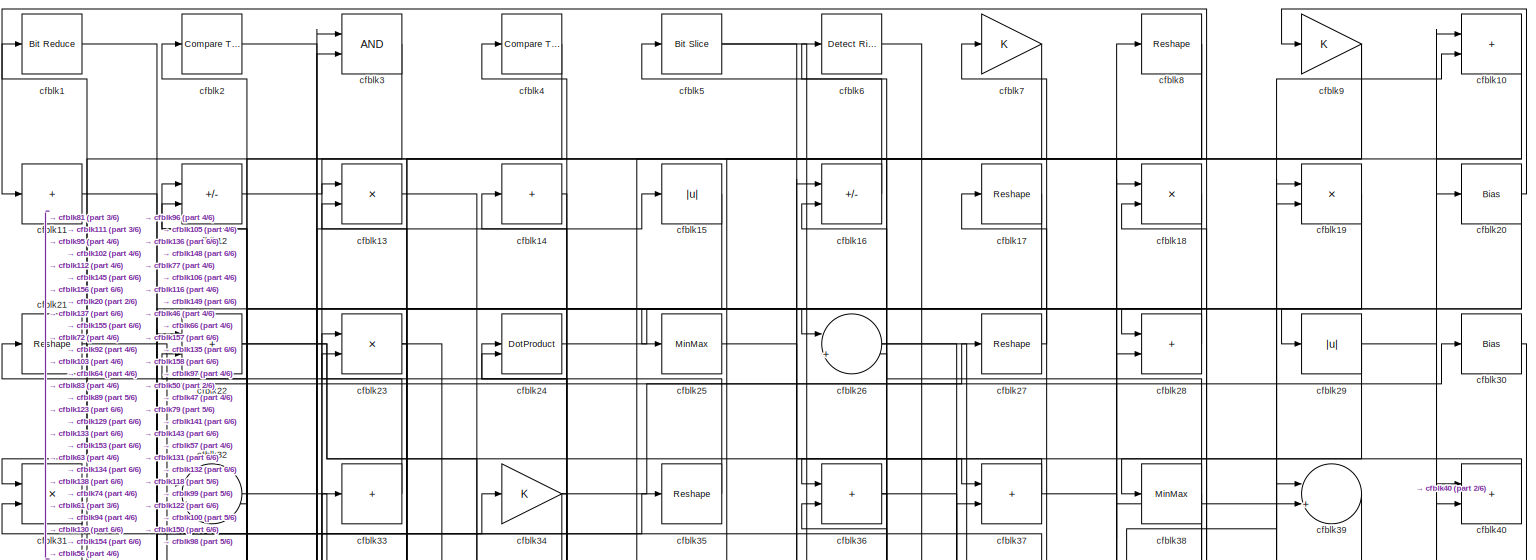
[diagram: root canvas - part 1/6, full width, top band]
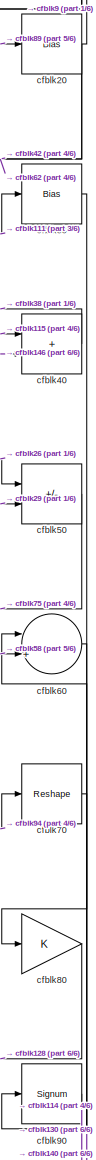
[diagram: root canvas - part 2/6, top right region]
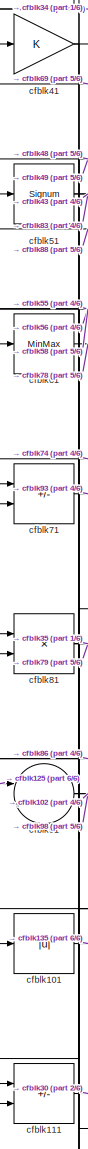
[diagram: root canvas - part 3/6, middle left region]
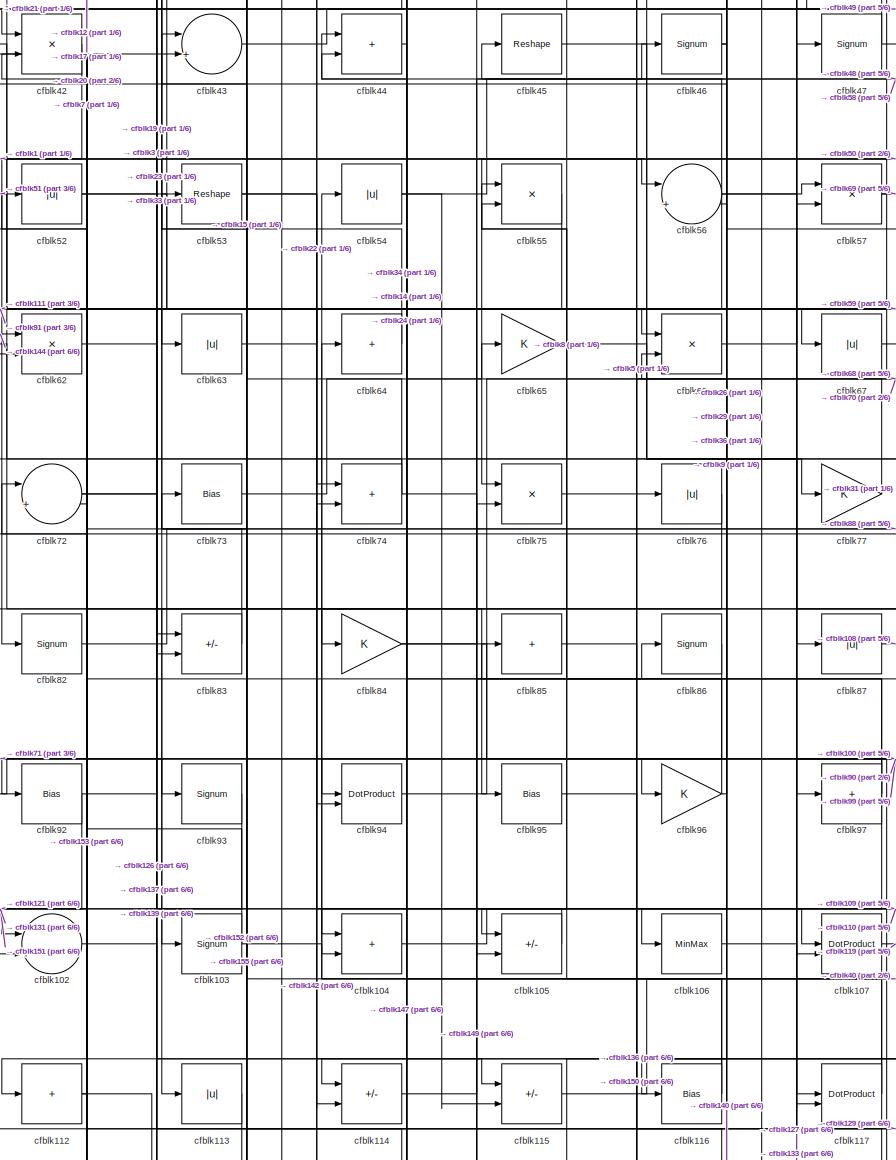
[diagram: root canvas - part 4/6, central region]
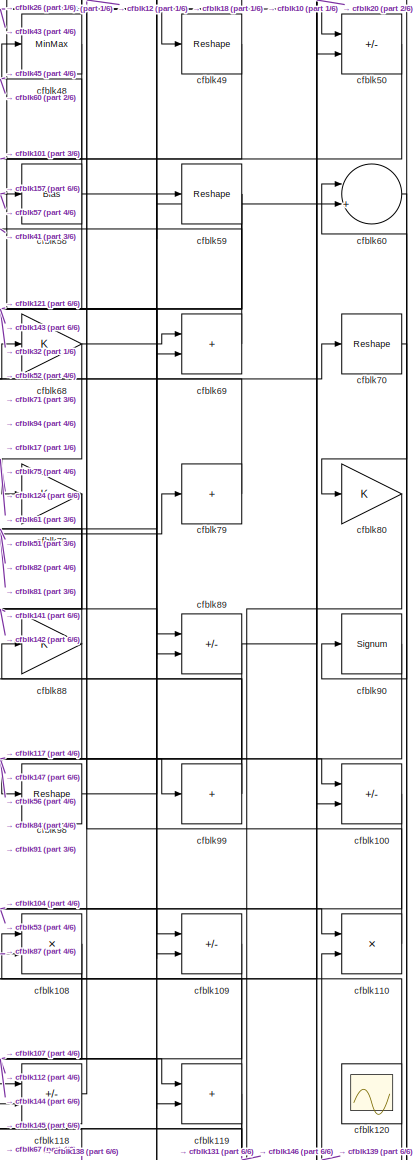
[diagram: root canvas - part 5/6, middle right region]
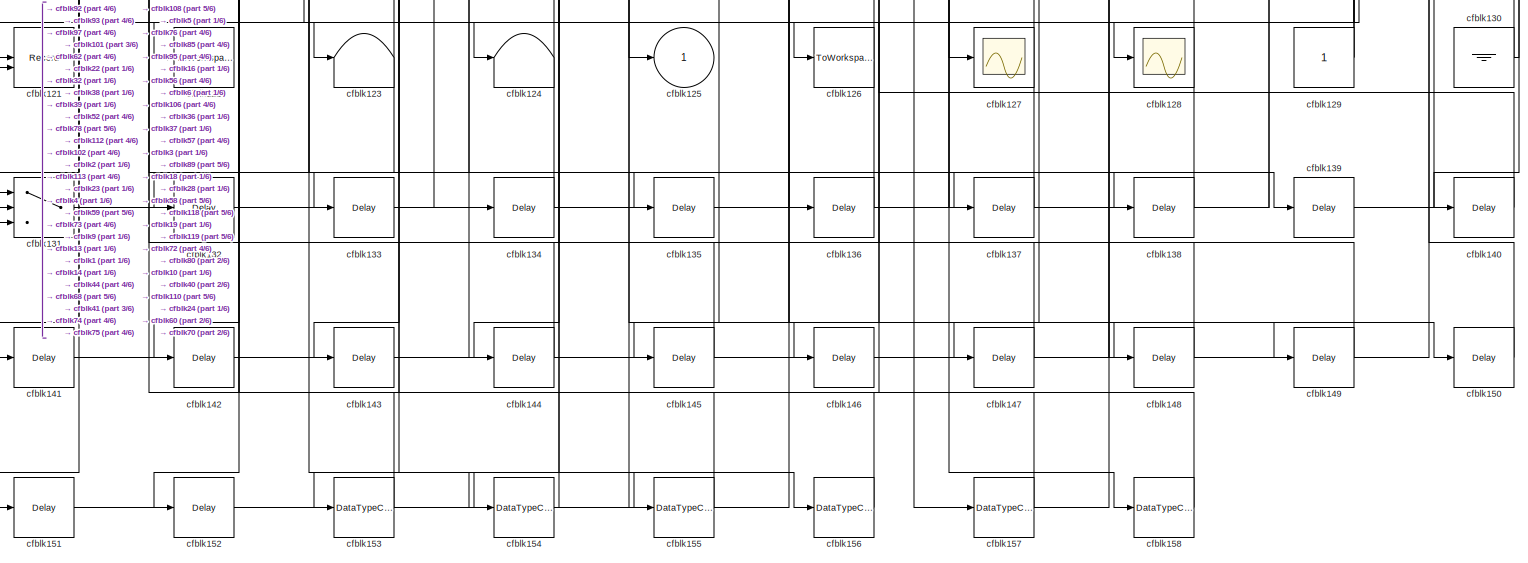
[diagram: root canvas - part 6/6, full width, bottom band]
MODEL slx_ee66add01285
KIND model
CONFIG AbsTol = auto
CONFIG EnableMultiTasking = off
CONFIG FixedStep = auto
CONFIG MaxStep = auto
CONFIG MinStep = auto
CONFIG RelTol = 1e-3
CONFIG SampleTimeConstraint = Unconstrained
CONFIG SolverName = VariableStepAuto
CONFIG StartTime = 0.0
CONFIG StopTime = 10.0
BLOCK [Reference] cfblk1  REF=hdlsllib/Logic and Bit
Operations/Bit Reduce
  SourceBlock = hdlsllib/Logic and Bit\nOperations/Bit Reduce
  SourceType = Bit Reduce
BLOCK [Sum] cfblk10
  IconShape = rectangular
BLOCK [Sum] cfblk100
  IconShape = rectangular
  Inputs = +-
BLOCK [Abs] cfblk101
  SaturateOnIntegerOverflow = off
BLOCK [Sum] cfblk102
  Inputs = |++
BLOCK [Signum] cfblk103
BLOCK [Sum] cfblk104
  IconShape = rectangular
BLOCK [Sum] cfblk105
  IconShape = rectangular
  Inputs = +-
BLOCK [MinMax] cfblk106
BLOCK [DotProduct] cfblk107
  OutDataTypeStr = Inherit: Inherit via internal rule
BLOCK [Product] cfblk108
  Inputs = */
  RndMeth = Zero
  SaturateOnIntegerOverflow = on
BLOCK [Sum] cfblk109
  IconShape = rectangular
  Inputs = +-
BLOCK [Sum] cfblk11
  IconShape = rectangular
  Inputs = +
BLOCK [Product] cfblk110
  Inputs = */
  RndMeth = Zero
  SaturateOnIntegerOverflow = on
BLOCK [Sum] cfblk111
  IconShape = rectangular
  Inputs = +-
BLOCK [Sum] cfblk112
  IconShape = rectangular
  Inputs = +
BLOCK [Abs] cfblk113
  SaturateOnIntegerOverflow = off
BLOCK [Sum] cfblk114
  IconShape = rectangular
  Inputs = +-
BLOCK [Sum] cfblk115
  IconShape = rectangular
  Inputs = +-
BLOCK [Bias] cfblk116
  Bias = 0.0
  SaturateOnIntegerOverflow = off
BLOCK [DotProduct] cfblk117
  OutDataTypeStr = Inherit: Inherit via internal rule
BLOCK [Sum] cfblk118
  IconShape = rectangular
  Inputs = +-
BLOCK [Sum] cfblk119
  IconShape = rectangular
BLOCK [Sum] cfblk12
  IconShape = rectangular
  Inputs = +-
BLOCK [Scope] cfblk120
  Floating = on
  NumInputPorts = 1
  ScopeSpecificationString = Simulink.scopes.TimeScopeBlockCfg('CurrentConfiguration', extmgr.ConfigurationSet(extmgr.Configuration('Core','General UI',true,'FigureColor',[0.156862745098039 0.156862745098039 0.156862745098039]),extmgr.Configuration('Core','Source UI',true),extmgr.Configuration('Sources','WiredSimulink',true,'DataLoggingVariableName','ScopeData1','DataLoggingSaveFormat','StructureWithTime','DataLoggingLimitDat...<+2713ch>
BLOCK [Record] cfblk121
  CompatibilityTag = XY
  FileSettingsInternal = {"entries":[{"content":{"excelSettings":{"content":{},"type":"Streamout.ExcelSettings"}},"type":"Streamout.FileSettingStorage","uuid":""}],"packageUris":["http:\/\/schema.mathworks.com\/mf0\/streamout_blocks\/R2020a"],"version":"1.0"}
  Layout = [1 1]
  SignalsInternal = {"entries":[{"content":{"signals":[{"content":{"blockPath":[],"dimensions":[1],"domain":"","lineColor":"#a2142f","plots":[1],"port":1,"signalID":6369,"signalName":"XY Graph:1"},"type":"RecordBlkView.Signal","uuid":""},{"content":{"blockPath":[],"dimensions":[1],"domain":"","lineColor":"#139fff","plots":[1],"port":2,"signalID":6372,"signalName":"XY Graph:2"},"type":"RecordBlkView.Signal","uuid":""}...<+146ch>
  VisualizationBindings = {"xyplotplugin":{"info":[{"series":[{"bindingParametersList":[{"parameter":"X-Axis","signalID":6369,"signalName":"XY Graph:1"},{"parameter":"Y-Axis","signalID":6372,"signalName":"XY Graph:2"}],"seriesID":44512}],"subplotID":1}]}}
  st = -1
BLOCK [ToWorkspace] cfblk122
  MaxDataPoints = inf
  SampleTime = -1
  SaveFormat = Timeseries
  VariableName = simout
BLOCK [Terminator] cfblk123
BLOCK [Terminator] cfblk124
BLOCK [Outport] cfblk125
  VectorParamsAs1DForOutWhenUnconnected = off
BLOCK [ToWorkspace] cfblk126
  MaxDataPoints = inf
  SampleTime = -1
  SaveFormat = Timeseries
  VariableName = simout
BLOCK [Scope] cfblk127
  Floating = off
  NumInputPorts = 1
  ScopeSpecificationString = Simulink.scopes.TimeScopeBlockCfg('CurrentConfiguration', extmgr.ConfigurationSet(extmgr.Configuration('Core','General UI',true),extmgr.Configuration('Core','Source UI',true),extmgr.Configuration('Sources','WiredSimulink',true,'DataLoggingVariableName','ScopeData2','DataLoggingSaveFormat','Array','DataLoggingLimitDataPoints',true,'DataLoggingDecimation','1'),extmgr.Configuration('Visuals','Time Do...<+868ch>
BLOCK [Scope] cfblk128
  Floating = off
  NumInputPorts = 1
  ScopeSpecificationString = Simulink.scopes.TimeScopeBlockCfg('CurrentConfiguration', extmgr.ConfigurationSet(extmgr.Configuration('Core','General UI',true),extmgr.Configuration('Core','Source UI',true),extmgr.Configuration('Sources','WiredSimulink',true,'DataLoggingVariableName','ScopeData2','DataLoggingSaveFormat','Array','DataLoggingLimitDataPoints',true,'DataLoggingDecimation','1'),extmgr.Configuration('Visuals','Time Do...<+868ch>
BLOCK [Constant] cfblk129
  SampleTime = -1
BLOCK [Product] cfblk13
  Inputs = */
  RndMeth = Zero
  SaturateOnIntegerOverflow = on
BLOCK [Ground] cfblk130
BLOCK [Switch] cfblk131
  InputSameDT = off
  SaturateOnIntegerOverflow = off
BLOCK [Delay] cfblk132
  InputPortMap = u0
  SampleTime = 1
BLOCK [Delay] cfblk133
  InputPortMap = u0
  SampleTime = 1
BLOCK [Delay] cfblk134
  InputPortMap = u0
  SampleTime = 1
BLOCK [Delay] cfblk135
  InputPortMap = u0
  SampleTime = 1
BLOCK [Delay] cfblk136
  InputPortMap = u0
  SampleTime = 1
BLOCK [Delay] cfblk137
  InputPortMap = u0
  SampleTime = 1
BLOCK [Delay] cfblk138
  InputPortMap = u0
  SampleTime = 1
BLOCK [Delay] cfblk139
  InputPortMap = u0
  SampleTime = 1
BLOCK [Sum] cfblk14
  IconShape = rectangular
  Inputs = +
BLOCK [Delay] cfblk140
  InputPortMap = u0
  SampleTime = 1
BLOCK [Delay] cfblk141
  InputPortMap = u0
  SampleTime = 1
BLOCK [Delay] cfblk142
  InputPortMap = u0
  SampleTime = 1
BLOCK [Delay] cfblk143
  InputPortMap = u0
  SampleTime = 1
BLOCK [Delay] cfblk144
  InputPortMap = u0
  SampleTime = 1
BLOCK [Delay] cfblk145
  InputPortMap = u0
  SampleTime = 1
BLOCK [Delay] cfblk146
  InputPortMap = u0
  SampleTime = 1
BLOCK [Delay] cfblk147
  InputPortMap = u0
  SampleTime = 1
BLOCK [Delay] cfblk148
  InputPortMap = u0
  SampleTime = 1
BLOCK [Delay] cfblk149
  InputPortMap = u0
  SampleTime = 1
BLOCK [Abs] cfblk15
  SaturateOnIntegerOverflow = off
BLOCK [Delay] cfblk150
  InputPortMap = u0
  SampleTime = 1
BLOCK [Delay] cfblk151
  InputPortMap = u0
  SampleTime = 1
BLOCK [Delay] cfblk152
  InputPortMap = u0
  SampleTime = 1
BLOCK [DataTypeConversion] cfblk153
  RndMeth = Floor
  SaturateOnIntegerOverflow = off
BLOCK [DataTypeConversion] cfblk154
  OutDataTypeStr = uint8
  RndMeth = Floor
  SaturateOnIntegerOverflow = off
BLOCK [DataTypeConversion] cfblk155
  OutDataTypeStr = uint8
  RndMeth = Floor
  SaturateOnIntegerOverflow = off
BLOCK [DataTypeConversion] cfblk156
  OutDataTypeStr = uint8
  RndMeth = Floor
  SaturateOnIntegerOverflow = off
BLOCK [DataTypeConversion] cfblk157
  RndMeth = Floor
  SaturateOnIntegerOverflow = off
BLOCK [DataTypeConversion] cfblk158
  OutDataTypeStr = uint8
  RndMeth = Floor
  SaturateOnIntegerOverflow = off
BLOCK [Sum] cfblk16
  IconShape = rectangular
  Inputs = +-
BLOCK [Reshape] cfblk17
BLOCK [Product] cfblk18
  Inputs = */
  RndMeth = Zero
  SaturateOnIntegerOverflow = on
BLOCK [Product] cfblk19
  Inputs = */
  RndMeth = Zero
  SaturateOnIntegerOverflow = on
BLOCK [Reference] cfblk2  REF=hdlsllib/Logic and Bit
Operations/Compare
To Zero
  SourceBlock = hdlsllib/Logic and Bit\nOperations/Compare\nTo Zero
  SourceType = Compare To Zero
BLOCK [Bias] cfblk20
  Bias = 0.0
  SaturateOnIntegerOverflow = off
BLOCK [Reshape] cfblk21
BLOCK [Sum] cfblk22
  IconShape = rectangular
BLOCK [Product] cfblk23
  Inputs = */
  RndMeth = Zero
  SaturateOnIntegerOverflow = on
BLOCK [DotProduct] cfblk24
  OutDataTypeStr = Inherit: Inherit via internal rule
BLOCK [MinMax] cfblk25
BLOCK [Sum] cfblk26
  Inputs = |++
BLOCK [Reshape] cfblk27
BLOCK [Sum] cfblk28
  IconShape = rectangular
BLOCK [Abs] cfblk29
  SaturateOnIntegerOverflow = off
BLOCK [Logic] cfblk3
  AllPortsSameDT = off
  OutDataTypeStr = boolean
BLOCK [Bias] cfblk30
  Bias = 0.0
  SaturateOnIntegerOverflow = off
BLOCK [Product] cfblk31
  Inputs = */
  RndMeth = Zero
  SaturateOnIntegerOverflow = on
BLOCK [Sum] cfblk32
  Inputs = |++
BLOCK [Sum] cfblk33
  IconShape = rectangular
  Inputs = +
BLOCK [Gain] cfblk34
BLOCK [Reshape] cfblk35
BLOCK [Sum] cfblk36
  IconShape = rectangular
BLOCK [Sum] cfblk37
  IconShape = rectangular
BLOCK [MinMax] cfblk38
BLOCK [Sum] cfblk39
  Inputs = |++
BLOCK [Reference] cfblk4  REF=hdlsllib/Logic and Bit
Operations/Compare
To Zero
  SourceBlock = hdlsllib/Logic and Bit\nOperations/Compare\nTo Zero
  SourceType = Compare To Zero
BLOCK [Sum] cfblk40
  IconShape = rectangular
BLOCK [Gain] cfblk41
BLOCK [Product] cfblk42
  Inputs = */
  RndMeth = Zero
  SaturateOnIntegerOverflow = on
BLOCK [Sum] cfblk43
  Inputs = |++
BLOCK [Sum] cfblk44
  IconShape = rectangular
BLOCK [Reshape] cfblk45
BLOCK [Signum] cfblk46
BLOCK [Signum] cfblk47
BLOCK [MinMax] cfblk48
BLOCK [Reshape] cfblk49
BLOCK [Reference] cfblk5  REF=hdlsllib/Logic and Bit
Operations/Bit Slice
  SourceBlock = hdlsllib/Logic and Bit\nOperations/Bit Slice
  SourceType = Bit Slice
BLOCK [Sum] cfblk50
  IconShape = rectangular
  Inputs = +-
BLOCK [Signum] cfblk51
BLOCK [Abs] cfblk52
  SaturateOnIntegerOverflow = off
BLOCK [Reshape] cfblk53
BLOCK [Abs] cfblk54
  SaturateOnIntegerOverflow = off
BLOCK [Product] cfblk55
  Inputs = */
  RndMeth = Zero
  SaturateOnIntegerOverflow = on
BLOCK [Sum] cfblk56
  Inputs = |++
BLOCK [Product] cfblk57
  Inputs = */
  RndMeth = Zero
  SaturateOnIntegerOverflow = on
BLOCK [Bias] cfblk58
  Bias = 0.0
  SaturateOnIntegerOverflow = off
BLOCK [Reshape] cfblk59
BLOCK [Reference] cfblk6  REF=hdlsllib/Logic and Bit
Operations/Detect Rise
Nonnegative
  SourceBlock = hdlsllib/Logic and Bit\nOperations/Detect Rise\nNonnegative
  SourceType = Detect Rise Nonnegative
BLOCK [Sum] cfblk60
  Inputs = |++
BLOCK [MinMax] cfblk61
BLOCK [Product] cfblk62
  Inputs = */
  RndMeth = Zero
  SaturateOnIntegerOverflow = on
BLOCK [Abs] cfblk63
  SaturateOnIntegerOverflow = off
BLOCK [Sum] cfblk64
  IconShape = rectangular
  Inputs = +
BLOCK [Gain] cfblk65
BLOCK [Product] cfblk66
  Inputs = */
  RndMeth = Zero
  SaturateOnIntegerOverflow = on
BLOCK [Abs] cfblk67
  SaturateOnIntegerOverflow = off
BLOCK [Gain] cfblk68
BLOCK [Sum] cfblk69
  IconShape = rectangular
BLOCK [Gain] cfblk7
BLOCK [Reshape] cfblk70
BLOCK [Sum] cfblk71
  IconShape = rectangular
  Inputs = +-
BLOCK [Sum] cfblk72
  Inputs = |++
BLOCK [Bias] cfblk73
  Bias = 0.0
  SaturateOnIntegerOverflow = off
BLOCK [Sum] cfblk74
  IconShape = rectangular
BLOCK [Product] cfblk75
  Inputs = */
  RndMeth = Zero
  SaturateOnIntegerOverflow = on
BLOCK [Abs] cfblk76
  SaturateOnIntegerOverflow = off
BLOCK [Gain] cfblk77
BLOCK [Gain] cfblk78
BLOCK [Sum] cfblk79
  IconShape = rectangular
  Inputs = +
BLOCK [Reshape] cfblk8
BLOCK [Gain] cfblk80
BLOCK [Product] cfblk81
  Inputs = */
  RndMeth = Zero
  SaturateOnIntegerOverflow = on
BLOCK [Signum] cfblk82
BLOCK [Sum] cfblk83
  IconShape = rectangular
  Inputs = +-
BLOCK [Gain] cfblk84
BLOCK [Sum] cfblk85
  IconShape = rectangular
  Inputs = +
BLOCK [Signum] cfblk86
BLOCK [Abs] cfblk87
  SaturateOnIntegerOverflow = off
BLOCK [Gain] cfblk88
BLOCK [Sum] cfblk89
  IconShape = rectangular
  Inputs = +-
BLOCK [Gain] cfblk9
BLOCK [Signum] cfblk90
BLOCK [Sum] cfblk91
  Inputs = |++
BLOCK [Bias] cfblk92
  Bias = 0.0
  SaturateOnIntegerOverflow = off
BLOCK [Signum] cfblk93
BLOCK [DotProduct] cfblk94
  OutDataTypeStr = Inherit: Inherit via internal rule
BLOCK [Bias] cfblk95
  Bias = 0.0
  SaturateOnIntegerOverflow = off
BLOCK [Gain] cfblk96
BLOCK [Sum] cfblk97
  IconShape = rectangular
  Inputs = +
BLOCK [Reshape] cfblk98
BLOCK [Sum] cfblk99
  IconShape = rectangular
  Inputs = +
LINE cfblk100:1 -> cfblk107:2
LINE cfblk101:1 -> cfblk135:1
LINE cfblk102:1 -> cfblk137:1
NET cfblk103:1 -> cfblk104:2, cfblk42:2
LINE cfblk104:1 -> cfblk110:1
LINE cfblk105:1 -> cfblk104:1
LINE cfblk106:1 -> cfblk127:1
LINE cfblk107:1 -> cfblk119:1
NET cfblk108:1 -> cfblk144:1, cfblk145:1
LINE cfblk109:1 -> cfblk112:1
NET cfblk10:1 -> cfblk100:2, cfblk118:2
LINE cfblk110:1 -> cfblk88:1
NET cfblk111:1 -> cfblk30:1, cfblk34:1
NET cfblk112:1 -> cfblk126:1, cfblk12:1
LINE cfblk113:1 -> cfblk152:1
LINE cfblk114:1 -> cfblk86:1
LINE cfblk115:1 -> cfblk40:1
NET cfblk116:1 -> cfblk43:1, cfblk54:1
NET cfblk117:1 -> cfblk55:2, cfblk64:1
LINE cfblk118:1 -> cfblk18:2
NET cfblk119:1 -> cfblk108:1, cfblk131:2, cfblk146:1
LINE cfblk11:1 -> cfblk32:1
NET cfblk129:1 -> cfblk23:2, cfblk72:1
LINE cfblk12:1 -> cfblk13:1
NET cfblk130:1 -> cfblk24:1, cfblk60:1
LINE cfblk131:1 -> cfblk39:1
LINE cfblk132:1 -> cfblk19:1
LINE cfblk133:1 -> cfblk57:2
LINE cfblk134:1 -> cfblk1:1
LINE cfblk135:1 -> cfblk37:2
LINE cfblk136:1 -> cfblk16:1
LINE cfblk137:1 -> cfblk3:1
LINE cfblk138:1 -> cfblk118:1
LINE cfblk139:1 -> cfblk110:2
LINE cfblk13:1 -> cfblk138:1
LINE cfblk140:1 -> cfblk56:2
LINE cfblk141:1 -> cfblk18:1
LINE cfblk142:1 -> cfblk74:2
LINE cfblk143:1 -> cfblk28:2
LINE cfblk144:1 -> cfblk62:1
LINE cfblk145:1 -> cfblk32:2
LINE cfblk146:1 -> cfblk40:2
LINE cfblk147:1 -> cfblk44:2
LINE cfblk148:1 -> cfblk22:2
LINE cfblk149:1 -> cfblk36:2
LINE cfblk14:1 -> cfblk154:1
LINE cfblk150:1 -> cfblk10:1
LINE cfblk151:1 -> cfblk75:2
LINE cfblk152:1 -> cfblk76:1
NET cfblk153:1 -> cfblk156:1, cfblk52:1
LINE cfblk154:1 -> cfblk4:1
LINE cfblk155:1 -> cfblk73:1
LINE cfblk156:1 -> cfblk2:1
NET cfblk157:1 -> cfblk22:1, cfblk58:1
LINE cfblk158:1 -> cfblk6:1
LINE cfblk15:1 -> cfblk63:1
LINE cfblk16:1 -> cfblk5:1
LINE cfblk17:1 -> cfblk102:1
LINE cfblk18:1 -> cfblk28:1
NET cfblk19:1 -> cfblk29:1, cfblk83:2
LINE cfblk1:1 -> cfblk56:1
NET cfblk20:1 -> cfblk42:1, cfblk62:2, cfblk9:1
LINE cfblk21:1 -> cfblk95:1
NET cfblk22:1 -> cfblk74:1, cfblk97:1
NET cfblk23:1 -> cfblk123:1, cfblk134:1
LINE cfblk24:1 -> cfblk26:1
LINE cfblk25:1 -> cfblk37:1
NET cfblk26:1 -> cfblk50:1, cfblk89:2
LINE cfblk27:1 -> cfblk7:1
LINE cfblk28:1 -> cfblk25:1
NET cfblk29:1 -> cfblk116:1, cfblk50:2
LINE cfblk2:1 -> cfblk155:1
LINE cfblk30:1 -> cfblk80:1
LINE cfblk31:1 -> cfblk81:1
LINE cfblk32:1 -> cfblk89:1
LINE cfblk33:1 -> cfblk21:1
NET cfblk34:1 -> cfblk27:1, cfblk61:1, cfblk94:1
LINE cfblk35:1 -> cfblk13:2
NET cfblk36:1 -> cfblk106:1, cfblk158:1
NET cfblk37:1 -> cfblk36:1, cfblk39:2
NET cfblk38:1 -> cfblk131:3, cfblk132:1, cfblk16:2
LINE cfblk39:1 -> cfblk122:1
LINE cfblk3:1 -> cfblk31:1
LINE cfblk40:1 -> cfblk38:1
NET cfblk41:1 -> cfblk125:1, cfblk91:1
LINE cfblk42:1 -> cfblk82:1
LINE cfblk43:1 -> cfblk49:1
LINE cfblk44:1 -> cfblk84:1
LINE cfblk45:1 -> cfblk87:1
NET cfblk46:1 -> cfblk26:2, cfblk96:1
NET cfblk47:1 -> cfblk31:2, cfblk8:1
LINE cfblk48:1 -> cfblk81:2
LINE cfblk49:1 -> cfblk101:1
LINE cfblk4:1 -> cfblk153:1
LINE cfblk50:1 -> cfblk75:1
NET cfblk51:1 -> cfblk43:2, cfblk83:1
NET cfblk52:1 -> cfblk109:1, cfblk114:2
NET cfblk53:1 -> cfblk109:2, cfblk115:1
NET cfblk54:1 -> cfblk115:2, cfblk46:1
LINE cfblk55:1 -> cfblk111:1
NET cfblk56:1 -> cfblk100:1, cfblk14:1, cfblk57:1, cfblk91:2
NET cfblk57:1 -> cfblk19:2, cfblk69:2
NET cfblk58:1 -> cfblk45:1, cfblk60:2, cfblk71:2
NET cfblk59:1 -> cfblk121:2, cfblk143:1, cfblk94:2
NET cfblk5:1 -> cfblk148:1, cfblk77:1
LINE cfblk60:1 -> cfblk90:1
LINE cfblk61:1 -> cfblk78:1
LINE cfblk62:1 -> cfblk107:1
LINE cfblk63:1 -> cfblk67:1
LINE cfblk64:1 -> cfblk33:1
LINE cfblk65:1 -> cfblk117:1
LINE cfblk66:1 -> cfblk47:1
LINE cfblk67:1 -> cfblk119:2
NET cfblk68:1 -> cfblk124:1, cfblk69:1
LINE cfblk69:1 -> cfblk41:1
LINE cfblk6:1 -> cfblk157:1
LINE cfblk70:1 -> cfblk140:1
LINE cfblk71:1 -> cfblk93:1
NET cfblk72:1 -> cfblk139:1, cfblk3:2
LINE cfblk73:1 -> cfblk65:1
NET cfblk74:1 -> cfblk149:1, cfblk53:1, cfblk71:1
LINE cfblk75:1 -> cfblk68:1
LINE cfblk76:1 -> cfblk113:1
LINE cfblk77:1 -> cfblk44:1
NET cfblk78:1 -> cfblk141:1, cfblk142:1
LINE cfblk79:1 -> cfblk17:1
LINE cfblk7:1 -> cfblk72:2
LINE cfblk80:1 -> cfblk128:1
NET cfblk81:1 -> cfblk35:1, cfblk79:1
LINE cfblk82:1 -> cfblk59:1
LINE cfblk83:1 -> cfblk23:1
NET cfblk84:1 -> cfblk48:1, cfblk99:1
LINE cfblk85:1 -> cfblk150:1
LINE cfblk86:1 -> cfblk111:2
LINE cfblk87:1 -> cfblk108:2
NET cfblk88:1 -> cfblk117:2, cfblk51:1
NET cfblk89:1 -> cfblk147:1, cfblk20:1
NET cfblk8:1 -> cfblk103:1, cfblk105:1, cfblk105:2
LINE cfblk90:1 -> cfblk114:1
NET cfblk91:1 -> cfblk102:2, cfblk98:1
NET cfblk92:1 -> cfblk121:1, cfblk15:1
LINE cfblk93:1 -> cfblk131:1
LINE cfblk94:1 -> cfblk70:1
LINE cfblk95:1 -> cfblk136:1
NET cfblk96:1 -> cfblk24:2, cfblk66:2
NET cfblk97:1 -> cfblk151:1, cfblk55:1, cfblk85:1, cfblk92:1
LINE cfblk98:1 -> cfblk10:2
NET cfblk99:1 -> cfblk11:1, cfblk12:2
NET cfblk9:1 -> cfblk133:1, cfblk66:1
note: NET lines group one-source signal fan-out (src -> all destinations, sorted); 1:1 wires keep LINE
